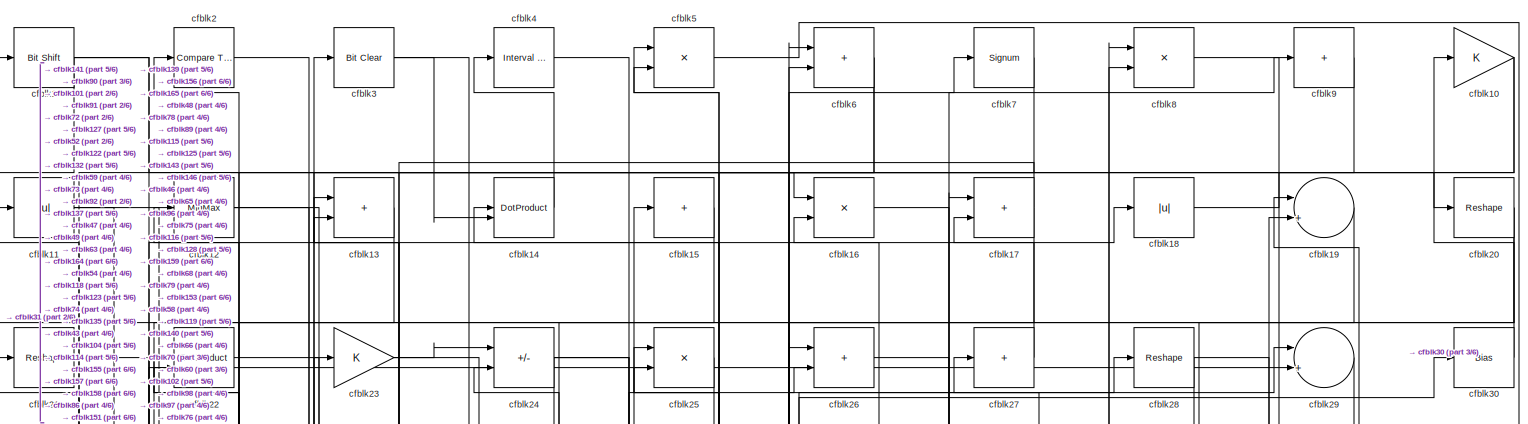
[diagram: root canvas - part 1/6, full width, top band]
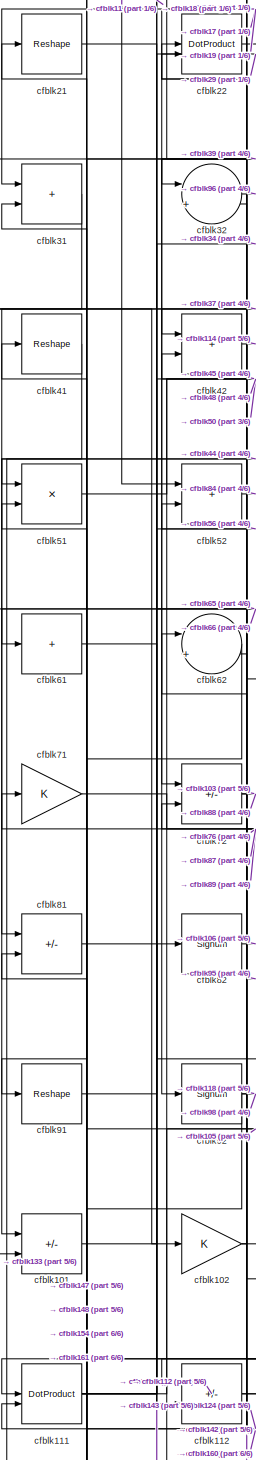
[diagram: root canvas - part 2/6, middle left region]
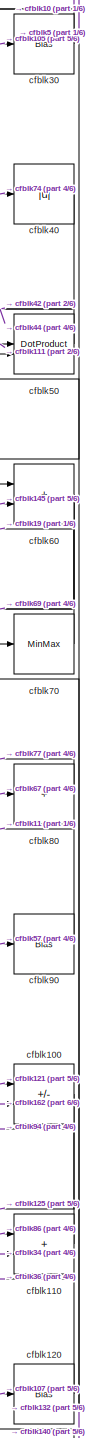
[diagram: root canvas - part 3/6, middle right region]
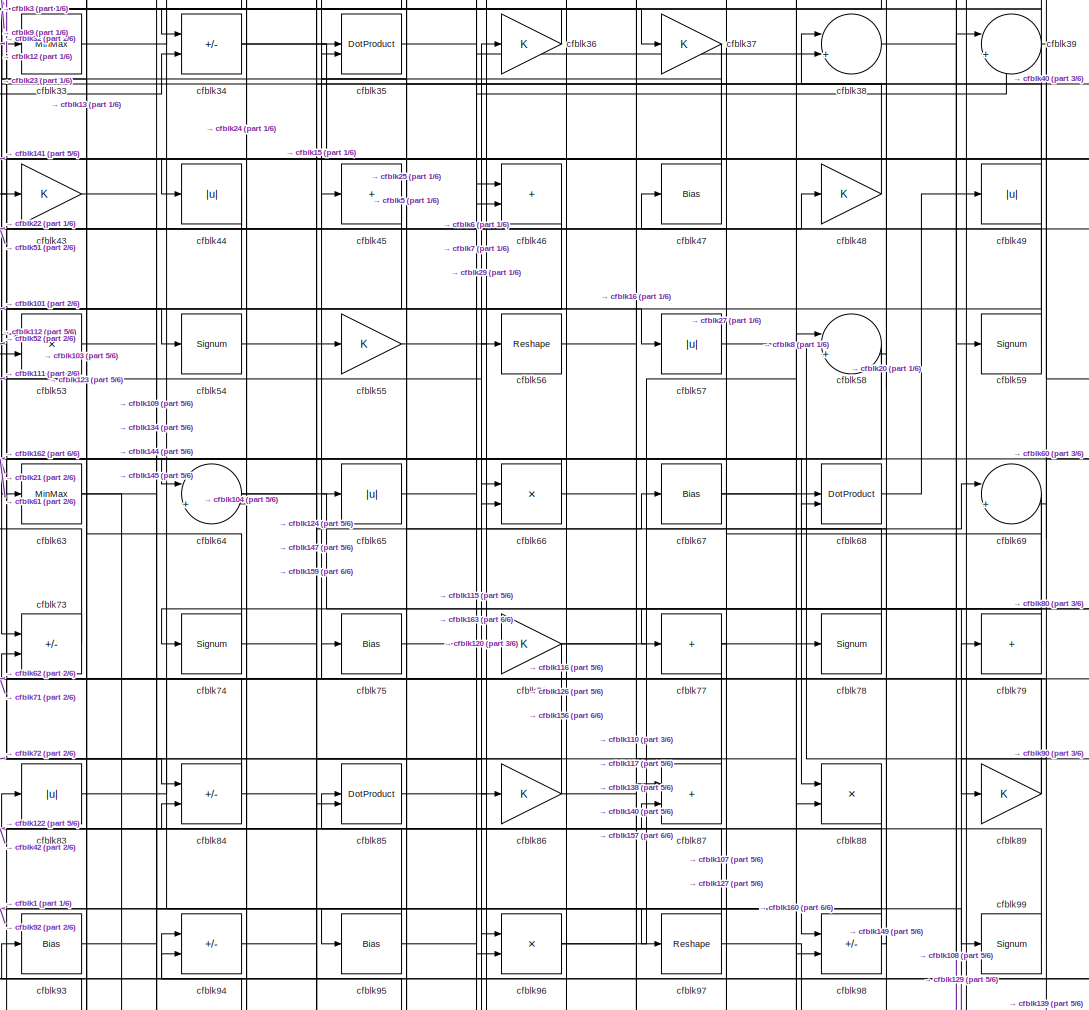
[diagram: root canvas - part 4/6, central region]
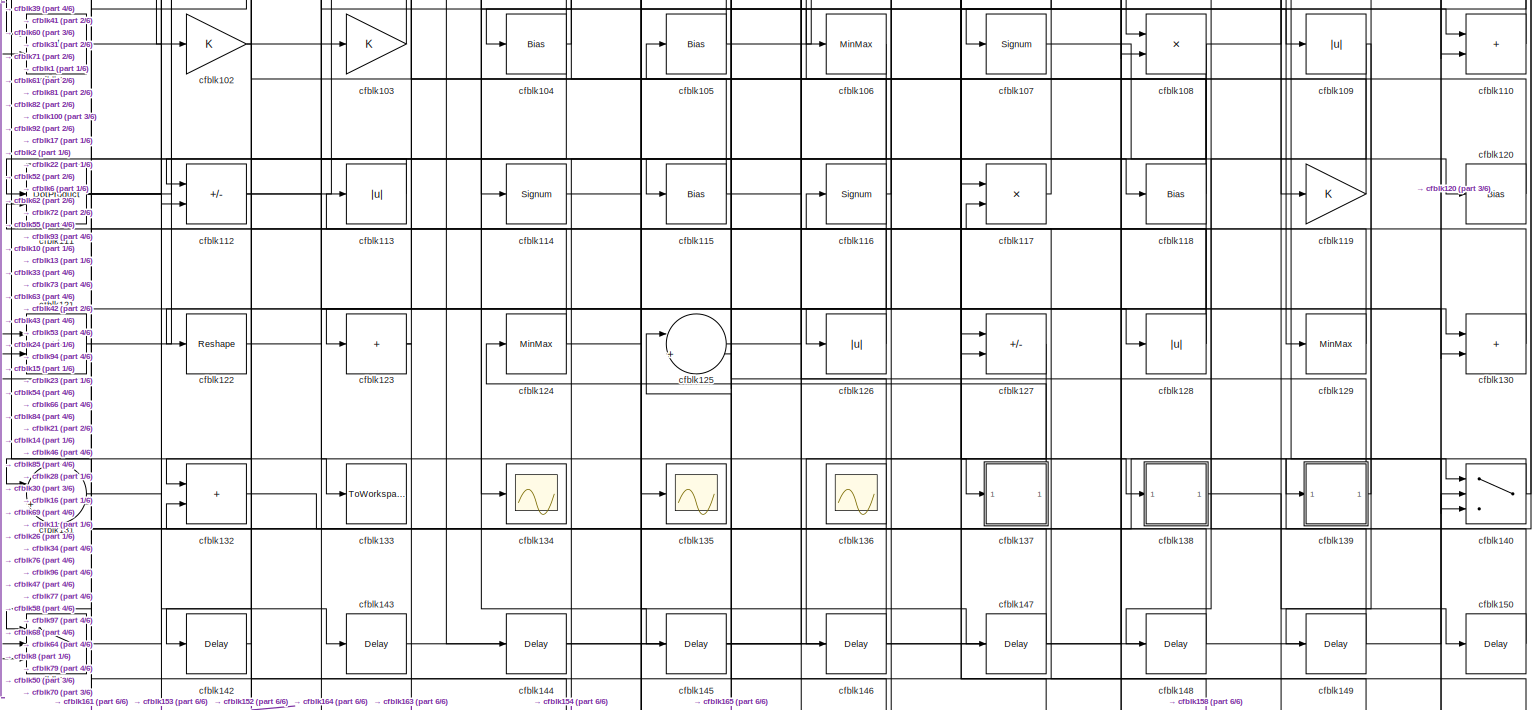
[diagram: root canvas - part 5/6, full width, bottom band]
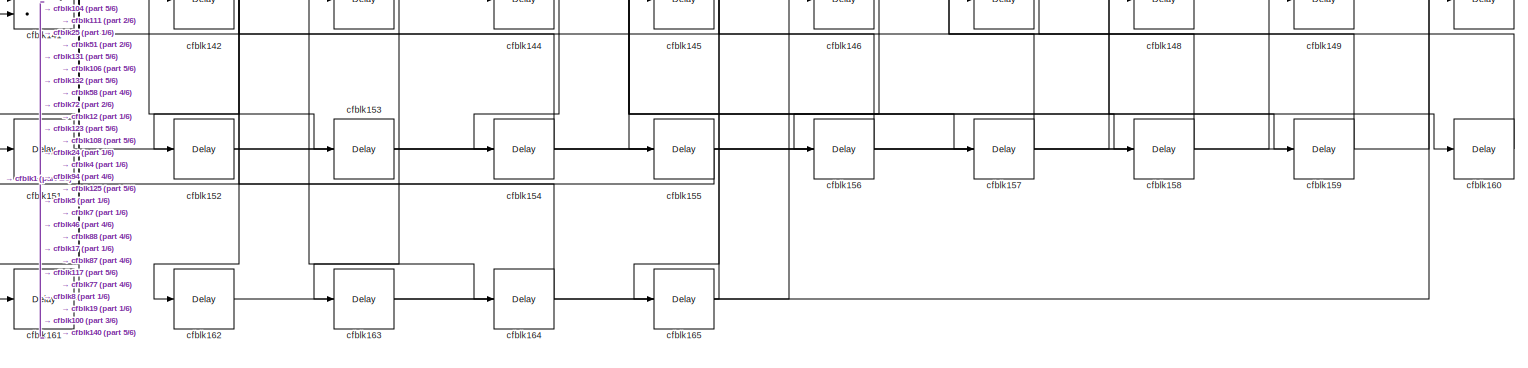
[diagram: root canvas - part 6/6, full width, bottom band]
MODEL slx_9d10bc08d2ab
KIND model
CONFIG AbsTol = auto
CONFIG EnableMultiTasking = off
CONFIG FixedStep = auto
CONFIG MaxStep = auto
CONFIG MinStep = auto
CONFIG RelTol = 1e-3
CONFIG SampleTimeConstraint = Unconstrained
CONFIG SolverName = VariableStepAuto
CONFIG StartTime = 0.0
CONFIG StopTime = 10.0
BLOCK [Reference] cfblk1  REF=hdlsllib/Logic and Bit
Operations/Bit Shift
  SourceBlock = hdlsllib/Logic and Bit\nOperations/Bit Shift
  SourceType = Bit Shift
BLOCK [Gain] cfblk10
BLOCK [Sum] cfblk100
  IconShape = rectangular
  Inputs = +-
BLOCK [Sum] cfblk101
  IconShape = rectangular
  Inputs = +-
BLOCK [Gain] cfblk102
BLOCK [Gain] cfblk103
BLOCK [Bias] cfblk104
  Bias = 0.0
  SaturateOnIntegerOverflow = off
BLOCK [Bias] cfblk105
  Bias = 0.0
  SaturateOnIntegerOverflow = off
BLOCK [MinMax] cfblk106
BLOCK [Signum] cfblk107
BLOCK [Product] cfblk108
  Inputs = */
  RndMeth = Zero
  SaturateOnIntegerOverflow = on
BLOCK [Abs] cfblk109
  SaturateOnIntegerOverflow = off
BLOCK [Abs] cfblk11
  SaturateOnIntegerOverflow = off
BLOCK [Sum] cfblk110
  IconShape = rectangular
BLOCK [DotProduct] cfblk111
  OutDataTypeStr = Inherit: Inherit via internal rule
BLOCK [Sum] cfblk112
  IconShape = rectangular
  Inputs = +-
BLOCK [Abs] cfblk113
  SaturateOnIntegerOverflow = off
BLOCK [Signum] cfblk114
BLOCK [Bias] cfblk115
  Bias = 0.0
  SaturateOnIntegerOverflow = off
BLOCK [Signum] cfblk116
BLOCK [Product] cfblk117
  Inputs = */
  RndMeth = Zero
  SaturateOnIntegerOverflow = on
BLOCK [Bias] cfblk118
  Bias = 0.0
  SaturateOnIntegerOverflow = off
BLOCK [Gain] cfblk119
BLOCK [MinMax] cfblk12
BLOCK [Bias] cfblk120
  Bias = 0.0
  SaturateOnIntegerOverflow = off
BLOCK [Sum] cfblk121
  IconShape = rectangular
  Inputs = +-
BLOCK [Reshape] cfblk122
BLOCK [Sum] cfblk123
  IconShape = rectangular
  Inputs = +
BLOCK [MinMax] cfblk124
BLOCK [Sum] cfblk125
  Inputs = |++
BLOCK [Abs] cfblk126
  SaturateOnIntegerOverflow = off
BLOCK [Sum] cfblk127
  IconShape = rectangular
  Inputs = +-
BLOCK [Abs] cfblk128
  SaturateOnIntegerOverflow = off
BLOCK [MinMax] cfblk129
BLOCK [Sum] cfblk13
  IconShape = rectangular
BLOCK [Sum] cfblk130
  IconShape = rectangular
BLOCK [Sum] cfblk131
  Inputs = |++
BLOCK [Sum] cfblk132
  IconShape = rectangular
BLOCK [ToWorkspace] cfblk133
  MaxDataPoints = inf
  SampleTime = -1
  SaveFormat = Timeseries
  VariableName = simout
BLOCK [Scope] cfblk134
  Floating = off
  NumInputPorts = 1
  ScopeSpecificationString = Simulink.scopes.TimeScopeBlockCfg('CurrentConfiguration', extmgr.ConfigurationSet(extmgr.Configuration('Core','General UI',true),extmgr.Configuration('Core','Source UI',true),extmgr.Configuration('Sources','WiredSimulink',true,'DataLoggingVariableName','ScopeData2','DataLoggingSaveFormat','Array','DataLoggingLimitDataPoints',true,'DataLoggingDecimation','1'),extmgr.Configuration('Visuals','Time Do...<+868ch>
BLOCK [Scope] cfblk135
  Floating = off
  NumInputPorts = 1
  ScopeSpecificationString = Simulink.scopes.TimeScopeBlockCfg('CurrentConfiguration', extmgr.ConfigurationSet(extmgr.Configuration('Core','General UI',true),extmgr.Configuration('Core','Source UI',true),extmgr.Configuration('Sources','WiredSimulink',true,'DataLoggingVariableName','ScopeData2','DataLoggingSaveFormat','Array','DataLoggingLimitDataPoints',true,'DataLoggingDecimation','1'),extmgr.Configuration('Visuals','Time Do...<+868ch>
BLOCK [Scope] cfblk136
  Floating = on
  NumInputPorts = 1
  ScopeSpecificationString = Simulink.scopes.TimeScopeBlockCfg('CurrentConfiguration', extmgr.ConfigurationSet(extmgr.Configuration('Core','General UI',true,'FigureColor',[0.156862745098039 0.156862745098039 0.156862745098039]),extmgr.Configuration('Core','Source UI',true),extmgr.Configuration('Sources','WiredSimulink',true,'DataLoggingVariableName','ScopeData1','DataLoggingSaveFormat','StructureWithTime','DataLoggingLimitDat...<+2713ch>
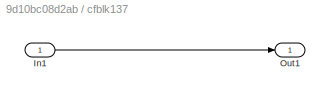
BLOCK [SubSystem] cfblk137
  LibrarySourceBlock = hdlsllib/Ports &\nSubsystems/Subsystem
BLOCK [Inport] cfblk137/In1
BLOCK [Outport] cfblk137/Out1
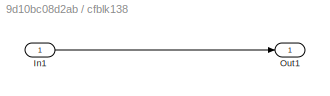
BLOCK [SubSystem] cfblk138
  LibrarySourceBlock = hdlsllib/Ports &\nSubsystems/Subsystem
BLOCK [Inport] cfblk138/In1
BLOCK [Outport] cfblk138/Out1
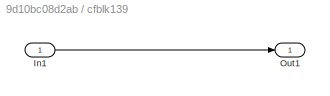
BLOCK [SubSystem] cfblk139
  LibrarySourceBlock = hdlsllib/Ports &\nSubsystems/Subsystem
BLOCK [Inport] cfblk139/In1
BLOCK [Outport] cfblk139/Out1
BLOCK [DotProduct] cfblk14
  OutDataTypeStr = Inherit: Inherit via internal rule
BLOCK [Switch] cfblk140
  InputSameDT = off
  SaturateOnIntegerOverflow = off
BLOCK [Switch] cfblk141
  InputSameDT = off
  SaturateOnIntegerOverflow = off
BLOCK [Delay] cfblk142
  InputPortMap = u0
  SampleTime = 1
BLOCK [Delay] cfblk143
  InputPortMap = u0
  SampleTime = 1
BLOCK [Delay] cfblk144
  InputPortMap = u0
  SampleTime = 1
BLOCK [Delay] cfblk145
  InputPortMap = u0
  SampleTime = 1
BLOCK [Delay] cfblk146
  InputPortMap = u0
  SampleTime = 1
BLOCK [Delay] cfblk147
  InputPortMap = u0
  SampleTime = 1
BLOCK [Delay] cfblk148
  InputPortMap = u0
  SampleTime = 1
BLOCK [Delay] cfblk149
  InputPortMap = u0
  SampleTime = 1
BLOCK [Sum] cfblk15
  IconShape = rectangular
  Inputs = +
BLOCK [Delay] cfblk150
  InputPortMap = u0
  SampleTime = 1
BLOCK [Delay] cfblk151
  InputPortMap = u0
  SampleTime = 1
BLOCK [Delay] cfblk152
  InputPortMap = u0
  SampleTime = 1
BLOCK [Delay] cfblk153
  InputPortMap = u0
  SampleTime = 1
BLOCK [Delay] cfblk154
  InputPortMap = u0
  SampleTime = 1
BLOCK [Delay] cfblk155
  InputPortMap = u0
  SampleTime = 1
BLOCK [Delay] cfblk156
  InputPortMap = u0
  SampleTime = 1
BLOCK [Delay] cfblk157
  InputPortMap = u0
  SampleTime = 1
BLOCK [Delay] cfblk158
  InputPortMap = u0
  SampleTime = 1
BLOCK [Delay] cfblk159
  InputPortMap = u0
  SampleTime = 1
BLOCK [Product] cfblk16
  Inputs = */
  RndMeth = Zero
  SaturateOnIntegerOverflow = on
BLOCK [Delay] cfblk160
  InputPortMap = u0
  SampleTime = 1
BLOCK [Delay] cfblk161
  InputPortMap = u0
  SampleTime = 1
BLOCK [Delay] cfblk162
  InputPortMap = u0
  SampleTime = 1
BLOCK [Delay] cfblk163
  InputPortMap = u0
  SampleTime = 1
BLOCK [Delay] cfblk164
  InputPortMap = u0
  SampleTime = 1
BLOCK [Delay] cfblk165
  InputPortMap = u0
  SampleTime = 1
BLOCK [Sum] cfblk17
  IconShape = rectangular
BLOCK [Abs] cfblk18
  SaturateOnIntegerOverflow = off
BLOCK [Sum] cfblk19
  Inputs = |++
BLOCK [Reference] cfblk2  REF=hdlsllib/Logic and Bit
Operations/Compare
To Zero
  SourceBlock = hdlsllib/Logic and Bit\nOperations/Compare\nTo Zero
  SourceType = Compare To Zero
BLOCK [Reshape] cfblk20
BLOCK [Reshape] cfblk21
BLOCK [DotProduct] cfblk22
  OutDataTypeStr = Inherit: Inherit via internal rule
BLOCK [Gain] cfblk23
BLOCK [Sum] cfblk24
  IconShape = rectangular
  Inputs = +-
BLOCK [Product] cfblk25
  Inputs = */
  RndMeth = Zero
  SaturateOnIntegerOverflow = on
BLOCK [Sum] cfblk26
  IconShape = rectangular
BLOCK [Sum] cfblk27
  IconShape = rectangular
  Inputs = +
BLOCK [Reshape] cfblk28
BLOCK [Sum] cfblk29
  Inputs = |++
BLOCK [Reference] cfblk3  REF=simulink/Logic and Bit
Operations/Bit Clear
  LibrarySourceBlock = hdlsllib/Logic and Bit\nOperations/Bit Clear
  SourceBlock = simulink/Logic and Bit\nOperations/Bit Clear
  SourceType = Bit Clear
BLOCK [Bias] cfblk30
  Bias = 0.0
  SaturateOnIntegerOverflow = off
BLOCK [Sum] cfblk31
  IconShape = rectangular
BLOCK [Sum] cfblk32
  Inputs = |++
BLOCK [MinMax] cfblk33
BLOCK [Sum] cfblk34
  IconShape = rectangular
  Inputs = +-
BLOCK [DotProduct] cfblk35
  OutDataTypeStr = Inherit: Inherit via internal rule
BLOCK [Gain] cfblk36
BLOCK [Gain] cfblk37
BLOCK [Sum] cfblk38
  Inputs = |++
BLOCK [Sum] cfblk39
  Inputs = |++
BLOCK [Reference] cfblk4  REF=hdlsllib/Logic and Bit
Operations/Interval Test
  SourceBlock = hdlsllib/Logic and Bit\nOperations/Interval Test
  SourceType = Interval Test
BLOCK [Abs] cfblk40
  SaturateOnIntegerOverflow = off
BLOCK [Reshape] cfblk41
BLOCK [Sum] cfblk42
  IconShape = rectangular
BLOCK [Gain] cfblk43
BLOCK [Abs] cfblk44
  SaturateOnIntegerOverflow = off
BLOCK [Sum] cfblk45
  IconShape = rectangular
  Inputs = +
BLOCK [Sum] cfblk46
  IconShape = rectangular
BLOCK [Bias] cfblk47
  Bias = 0.0
  SaturateOnIntegerOverflow = off
BLOCK [Gain] cfblk48
BLOCK [Abs] cfblk49
  SaturateOnIntegerOverflow = off
BLOCK [Product] cfblk5
  Inputs = */
  RndMeth = Zero
  SaturateOnIntegerOverflow = on
BLOCK [DotProduct] cfblk50
  OutDataTypeStr = Inherit: Inherit via internal rule
BLOCK [Product] cfblk51
  Inputs = */
  RndMeth = Zero
  SaturateOnIntegerOverflow = on
BLOCK [Sum] cfblk52
  IconShape = rectangular
BLOCK [Product] cfblk53
  Inputs = */
  RndMeth = Zero
  SaturateOnIntegerOverflow = on
BLOCK [Signum] cfblk54
BLOCK [Gain] cfblk55
BLOCK [Reshape] cfblk56
BLOCK [Abs] cfblk57
  SaturateOnIntegerOverflow = off
BLOCK [Sum] cfblk58
  Inputs = |++
BLOCK [Signum] cfblk59
BLOCK [Sum] cfblk6
  IconShape = rectangular
BLOCK [Sum] cfblk60
  IconShape = rectangular
BLOCK [Sum] cfblk61
  IconShape = rectangular
  Inputs = +
BLOCK [Sum] cfblk62
  Inputs = |++
BLOCK [MinMax] cfblk63
BLOCK [Sum] cfblk64
  Inputs = |++
BLOCK [Abs] cfblk65
  SaturateOnIntegerOverflow = off
BLOCK [Product] cfblk66
  Inputs = */
  RndMeth = Zero
  SaturateOnIntegerOverflow = on
BLOCK [Bias] cfblk67
  Bias = 0.0
  SaturateOnIntegerOverflow = off
BLOCK [DotProduct] cfblk68
  OutDataTypeStr = Inherit: Inherit via internal rule
BLOCK [Sum] cfblk69
  Inputs = |++
BLOCK [Signum] cfblk7
BLOCK [MinMax] cfblk70
BLOCK [Gain] cfblk71
BLOCK [Sum] cfblk72
  IconShape = rectangular
  Inputs = +-
BLOCK [Sum] cfblk73
  IconShape = rectangular
  Inputs = +-
BLOCK [Signum] cfblk74
BLOCK [Bias] cfblk75
  Bias = 0.0
  SaturateOnIntegerOverflow = off
BLOCK [Gain] cfblk76
BLOCK [Sum] cfblk77
  IconShape = rectangular
  Inputs = +
BLOCK [Signum] cfblk78
BLOCK [Sum] cfblk79
  IconShape = rectangular
  Inputs = +
BLOCK [Product] cfblk8
  Inputs = */
  RndMeth = Zero
  SaturateOnIntegerOverflow = on
BLOCK [Sum] cfblk80
  IconShape = rectangular
  Inputs = +
BLOCK [Sum] cfblk81
  IconShape = rectangular
  Inputs = +-
BLOCK [Signum] cfblk82
BLOCK [Abs] cfblk83
  SaturateOnIntegerOverflow = off
BLOCK [Sum] cfblk84
  IconShape = rectangular
  Inputs = +-
BLOCK [DotProduct] cfblk85
  OutDataTypeStr = Inherit: Inherit via internal rule
BLOCK [Gain] cfblk86
BLOCK [Sum] cfblk87
  IconShape = rectangular
BLOCK [Product] cfblk88
  Inputs = */
  RndMeth = Zero
  SaturateOnIntegerOverflow = on
BLOCK [Gain] cfblk89
BLOCK [Sum] cfblk9
  IconShape = rectangular
  Inputs = +
BLOCK [Bias] cfblk90
  Bias = 0.0
  SaturateOnIntegerOverflow = off
BLOCK [Reshape] cfblk91
BLOCK [Signum] cfblk92
BLOCK [Bias] cfblk93
  Bias = 0.0
  SaturateOnIntegerOverflow = off
BLOCK [Sum] cfblk94
  IconShape = rectangular
  Inputs = +-
BLOCK [Bias] cfblk95
  Bias = 0.0
  SaturateOnIntegerOverflow = off
BLOCK [Product] cfblk96
  Inputs = */
  RndMeth = Zero
  SaturateOnIntegerOverflow = on
BLOCK [Reshape] cfblk97
BLOCK [Sum] cfblk98
  IconShape = rectangular
  Inputs = +-
BLOCK [Signum] cfblk99
LINE cfblk100:1 -> cfblk125:2
LINE cfblk101:1 -> cfblk29:2
NET cfblk102:1 -> cfblk130:1, cfblk2:1
LINE cfblk103:1 -> cfblk93:1
NET cfblk104:1 -> cfblk161:1, cfblk24:2, cfblk94:1
NET cfblk105:1 -> cfblk21:1, cfblk30:1
LINE cfblk106:1 -> cfblk152:1
LINE cfblk107:1 -> cfblk120:1
NET cfblk108:1 -> cfblk131:2, cfblk154:1, cfblk39:1
NET cfblk109:1 -> cfblk148:1, cfblk149:1
NET cfblk10:1 -> cfblk123:1, cfblk141:1
LINE cfblk110:1 -> cfblk94:2
NET cfblk111:1 -> cfblk34:2, cfblk45:1, cfblk50:1, cfblk56:1
NET cfblk112:1 -> cfblk130:2, cfblk55:1
LINE cfblk113:1 -> cfblk112:1
LINE cfblk114:1 -> cfblk26:2
NET cfblk115:1 -> cfblk28:1, cfblk33:1
NET cfblk116:1 -> cfblk142:1, cfblk16:2, cfblk64:2
LINE cfblk117:1 -> cfblk47:1
NET cfblk118:1 -> cfblk131:1, cfblk13:1, cfblk22:2
LINE cfblk119:1 -> cfblk105:1
NET cfblk11:1 -> cfblk127:1, cfblk52:1
LINE cfblk120:1 -> cfblk36:1
LINE cfblk121:1 -> cfblk100:1
LINE cfblk122:1 -> cfblk84:2
NET cfblk123:1 -> cfblk163:1, cfblk73:2
NET cfblk124:1 -> cfblk66:2, cfblk71:1
LINE cfblk125:1 -> cfblk6:2
LINE cfblk126:1 -> cfblk113:1
LINE cfblk127:1 -> cfblk146:1
NET cfblk128:1 -> cfblk116:1, cfblk52:2
LINE cfblk129:1 -> cfblk85:1
NET cfblk12:1 -> cfblk164:1, cfblk54:1
LINE cfblk130:1 -> cfblk41:1
LINE cfblk131:1 -> cfblk153:1
LINE cfblk132:1 -> cfblk70:1
LINE cfblk137/In1:1 -> cfblk137/Out1:1
LINE cfblk137:1 -> cfblk124:1
LINE cfblk138/In1:1 -> cfblk138/Out1:1
LINE cfblk138:1 -> cfblk150:1
LINE cfblk139/In1:1 -> cfblk139/Out1:1
NET cfblk139:1 -> cfblk14:1, cfblk79:1
LINE cfblk13:1 -> cfblk31:1
NET cfblk140:1 -> cfblk139:1, cfblk50:2
LINE cfblk141:1 -> cfblk82:1
LINE cfblk142:1 -> cfblk62:1
LINE cfblk143:1 -> cfblk26:1
LINE cfblk144:1 -> cfblk58:1
LINE cfblk145:1 -> cfblk60:2
LINE cfblk146:1 -> cfblk6:1
LINE cfblk147:1 -> cfblk81:2
LINE cfblk148:1 -> cfblk31:2
LINE cfblk149:1 -> cfblk68:2
LINE cfblk14:1 -> cfblk4:1
LINE cfblk150:1 -> cfblk121:1
LINE cfblk151:1 -> cfblk19:2
LINE cfblk152:1 -> cfblk140:2
LINE cfblk153:1 -> cfblk8:1
LINE cfblk154:1 -> cfblk51:2
LINE cfblk155:1 -> cfblk1:1
LINE cfblk156:1 -> cfblk5:2
LINE cfblk157:1 -> cfblk87:1
LINE cfblk158:1 -> cfblk117:2
LINE cfblk159:1 -> cfblk17:1
LINE cfblk15:1 -> cfblk104:1
LINE cfblk160:1 -> cfblk72:2
LINE cfblk161:1 -> cfblk111:2
LINE cfblk162:1 -> cfblk100:2
LINE cfblk163:1 -> cfblk46:1
LINE cfblk164:1 -> cfblk132:2
LINE cfblk165:1 -> cfblk125:1
LINE cfblk16:1 -> cfblk68:1
NET cfblk17:1 -> cfblk122:1, cfblk92:1
LINE cfblk18:1 -> cfblk20:1
LINE cfblk19:1 -> cfblk72:1
NET cfblk1:1 -> cfblk102:1, cfblk16:1, cfblk98:2
NET cfblk20:1 -> cfblk46:2, cfblk58:2
LINE cfblk21:1 -> cfblk65:1
LINE cfblk22:1 -> cfblk78:1
NET cfblk23:1 -> cfblk135:1, cfblk24:1
NET cfblk24:1 -> cfblk157:1, cfblk158:1, cfblk43:1
LINE cfblk25:1 -> cfblk151:1
LINE cfblk26:1 -> cfblk128:1
LINE cfblk27:1 -> cfblk17:2
NET cfblk28:1 -> cfblk119:1, cfblk141:2
LINE cfblk29:1 -> cfblk66:1
LINE cfblk2:1 -> cfblk137:1
LINE cfblk30:1 -> cfblk10:1
LINE cfblk31:1 -> cfblk81:1
LINE cfblk32:1 -> cfblk96:1
LINE cfblk33:1 -> cfblk37:1
NET cfblk34:1 -> cfblk110:2, cfblk117:1
LINE cfblk35:1 -> cfblk38:2
LINE cfblk36:1 -> cfblk34:1
NET cfblk37:1 -> cfblk101:2, cfblk73:1
LINE cfblk38:1 -> cfblk59:1
NET cfblk39:1 -> cfblk141:3, cfblk32:1, cfblk89:1
NET cfblk3:1 -> cfblk14:2, cfblk97:1
LINE cfblk40:1 -> cfblk44:1
LINE cfblk41:1 -> cfblk133:1
LINE cfblk42:1 -> cfblk114:1
LINE cfblk43:1 -> cfblk134:1
LINE cfblk44:1 -> cfblk101:1
LINE cfblk45:1 -> cfblk51:1
NET cfblk46:1 -> cfblk115:1, cfblk53:2
LINE cfblk47:1 -> cfblk23:1
LINE cfblk48:1 -> cfblk5:1
NET cfblk49:1 -> cfblk3:1, cfblk64:1
LINE cfblk4:1 -> cfblk155:1
LINE cfblk50:1 -> cfblk42:1
LINE cfblk51:1 -> cfblk48:1
LINE cfblk52:1 -> cfblk84:1
LINE cfblk53:1 -> cfblk109:1
LINE cfblk54:1 -> cfblk108:2
LINE cfblk55:1 -> cfblk57:1
LINE cfblk56:1 -> cfblk99:1
LINE cfblk57:1 -> cfblk90:1
NET cfblk58:1 -> cfblk162:1, cfblk95:1
LINE cfblk59:1 -> cfblk22:1
LINE cfblk5:1 -> cfblk60:1
NET cfblk60:1 -> cfblk121:2, cfblk69:2
LINE cfblk61:1 -> cfblk143:1
LINE cfblk62:1 -> cfblk91:1
NET cfblk63:1 -> cfblk144:1, cfblk145:1
NET cfblk64:1 -> cfblk129:1, cfblk86:1
LINE cfblk65:1 -> cfblk7:1
NET cfblk66:1 -> cfblk61:1, cfblk9:1
NET cfblk67:1 -> cfblk80:1, cfblk88:1
LINE cfblk68:1 -> cfblk49:1
NET cfblk69:1 -> cfblk126:1, cfblk74:1
NET cfblk6:1 -> cfblk132:1, cfblk96:2
LINE cfblk70:1 -> cfblk19:1
LINE cfblk71:1 -> cfblk76:1
NET cfblk72:1 -> cfblk103:1, cfblk88:2
LINE cfblk73:1 -> cfblk12:1
NET cfblk74:1 -> cfblk13:2, cfblk40:1
LINE cfblk75:1 -> cfblk29:1
NET cfblk76:1 -> cfblk140:3, cfblk85:2, cfblk8:2
NET cfblk77:1 -> cfblk107:1, cfblk127:2, cfblk160:1
LINE cfblk78:1 -> cfblk25:1
LINE cfblk79:1 -> cfblk27:1
LINE cfblk7:1 -> cfblk165:1
LINE cfblk80:1 -> cfblk77:1
LINE cfblk81:1 -> cfblk112:2
LINE cfblk82:1 -> cfblk106:1
LINE cfblk83:1 -> cfblk75:1
NET cfblk84:1 -> cfblk147:1, cfblk53:1
LINE cfblk85:1 -> cfblk67:1
NET cfblk86:1 -> cfblk110:1, cfblk15:1
LINE cfblk87:1 -> cfblk62:2
LINE cfblk88:1 -> cfblk156:1
NET cfblk89:1 -> cfblk25:2, cfblk32:2
LINE cfblk8:1 -> cfblk140:1
LINE cfblk90:1 -> cfblk11:1
LINE cfblk91:1 -> cfblk18:1
NET cfblk92:1 -> cfblk111:1, cfblk118:1, cfblk98:1
LINE cfblk93:1 -> cfblk87:2
LINE cfblk94:1 -> cfblk159:1
NET cfblk95:1 -> cfblk39:2, cfblk42:2
NET cfblk96:1 -> cfblk138:1, cfblk69:1
NET cfblk97:1 -> cfblk108:1, cfblk35:1
NET cfblk98:1 -> cfblk35:2, cfblk38:1
LINE cfblk99:1 -> cfblk83:1
LINE cfblk9:1 -> cfblk63:1
note: NET lines group one-source signal fan-out (src -> all destinations, sorted); 1:1 wires keep LINE
